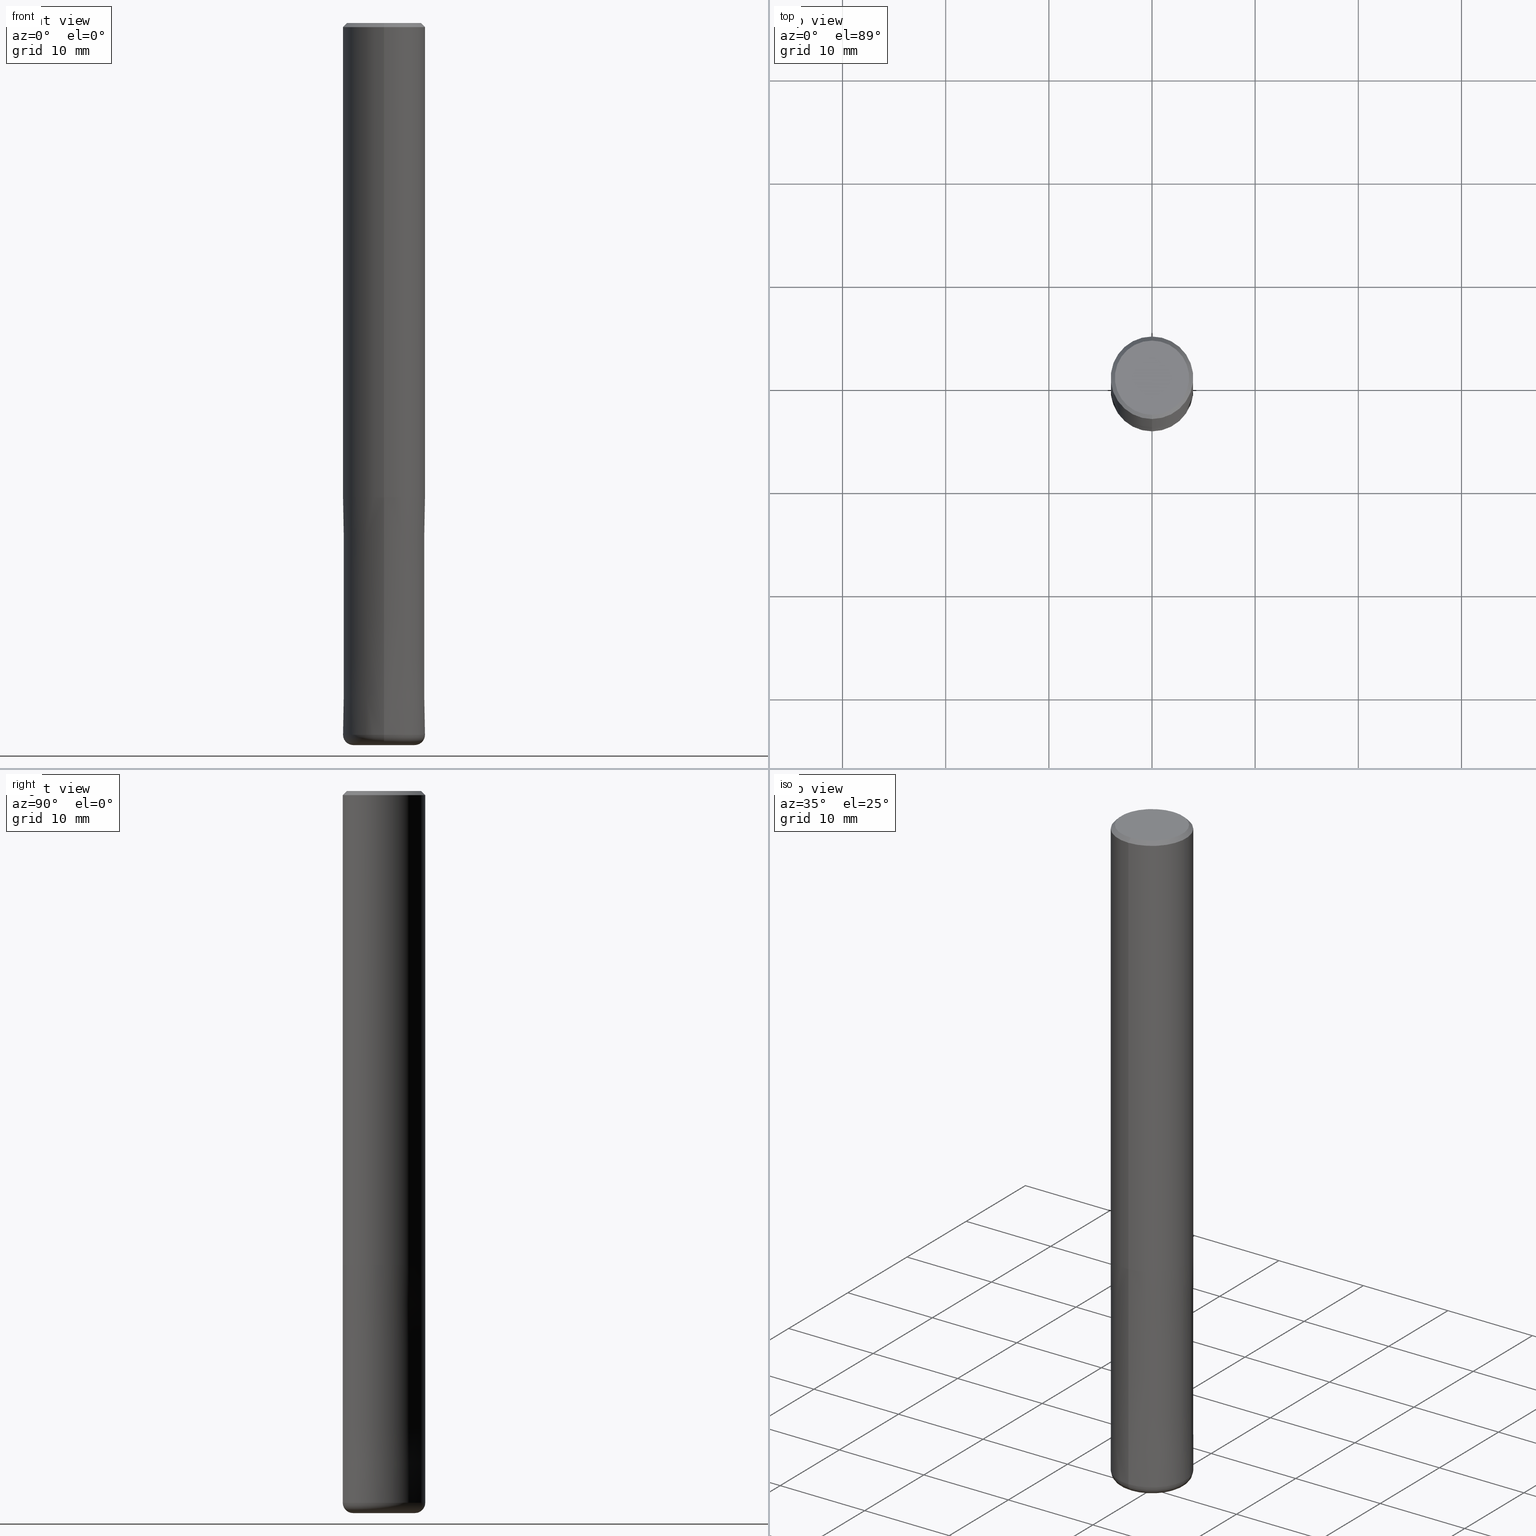
[diagram: canonical four-view strip — front | top / right | iso, engineering-drawing reading convention]
A machine part, canonical four-view strip (front | top / right | iso — engineering-drawing reading convention). The complete STEP part file that produces these views, byte-faithful:
ISO-10303-21;
HEADER;
FILE_DESCRIPTION(('no description'),'unknown implementation level');
FILE_NAME('CXRS5080-10-2400-Huellk.stp','  ',('CIMSOURCE GmbH'),('CADClick - KiM GmbH - www.kimweb.de'),'unknown preprocess','ACIS','unknown authorization');
FILE_SCHEMA(('automotive_design'));
ENDSEC;
DATA;
#1=MECHANICAL_DESIGN_GEOMETRIC_PRESENTATION_REPRESENTATION(' ',(#14,#15,#16,#17,#18,#19,#20,#21,#22,#23,#24,#25,#26,#27,#28,#29,#30,#31,#32,#33,#34,#35,#36,#37,#38,#39,#40,#41,#42,#43,#44,#45,#46,#47,#48,#49,#50,#51,#52,#53,#54,#55,#56,#57,#58,#59,#60,#61,#62,#63,#64,#65,#66,#67,#68,#69,#70,#71,#72,#73,#74,#75,#76,#77,#78,#79,#80,#81,#82,#83,#84),#10);
#2=PRODUCT_DEFINITION_CONTEXT('',#85,'design');
#3=APPLICATION_PROTOCOL_DEFINITION('INTERNATIONAL STANDARD','automotive_design',1994,#85);
#4=PRODUCT_CATEGORY_RELATIONSHIP('NONE','NONE',#86,#87);
#5=SHAPE_DEFINITION_REPRESENTATION(#88,#89);
#6=PRODUCT_DEFINITION_CONTEXT('',#90,'design');
#7=APPLICATION_PROTOCOL_DEFINITION('INTERNATIONAL STANDARD','automotive_design',1994,#90);
#8=PRODUCT_CATEGORY_RELATIONSHIP('NONE','NONE',#91,#92);
#9=SHAPE_DEFINITION_REPRESENTATION(#93,#94);
#10= (GEOMETRIC_REPRESENTATION_CONTEXT(3)GLOBAL_UNCERTAINTY_ASSIGNED_CONTEXT((#97))GLOBAL_UNIT_ASSIGNED_CONTEXT((#99,#100,#101))REPRESENTATION_CONTEXT('NONE','WORKSPACE'));
#14=STYLED_ITEM('',(#103),#104);
#15=STYLED_ITEM('',(#105),#106);
#16=STYLED_ITEM('',(#107),#108);
#17=STYLED_ITEM('',(#109),#110);
#18=STYLED_ITEM('',(#111),#112);
#19=STYLED_ITEM('',(#113),#114);
#20=STYLED_ITEM('',(#115),#116);
#21=STYLED_ITEM('',(#117),#118);
#22=STYLED_ITEM('',(#119),#120);
#23=STYLED_ITEM('',(#121),#122);
#24=STYLED_ITEM('',(#123),#124);
#25=STYLED_ITEM('',(#125),#126);
#26=STYLED_ITEM('',(#127),#128);
#27=STYLED_ITEM('',(#129),#130);
#28=STYLED_ITEM('',(#131),#132);
#29=STYLED_ITEM('',(#133),#134);
#30=STYLED_ITEM('',(#135),#136);
#31=STYLED_ITEM('',(#137),#138);
#32=STYLED_ITEM('',(#139),#140);
#33=STYLED_ITEM('',(#141),#142);
#34=STYLED_ITEM('',(#143),#144);
#35=STYLED_ITEM('',(#145),#146);
#36=STYLED_ITEM('',(#147),#148);
#37=STYLED_ITEM('',(#149),#150);
#38=STYLED_ITEM('',(#151),#152);
#39=STYLED_ITEM('',(#153),#154);
#40=STYLED_ITEM('',(#155),#156);
#41=STYLED_ITEM('',(#157),#158);
#42=STYLED_ITEM('',(#159),#160);
#43=STYLED_ITEM('',(#161),#162);
#44=STYLED_ITEM('',(#163),#164);
#45=STYLED_ITEM('',(#165),#166);
#46=STYLED_ITEM('',(#167),#168);
#47=STYLED_ITEM('',(#169),#170);
#48=STYLED_ITEM('',(#171),#172);
#49=STYLED_ITEM('',(#173),#174);
#50=STYLED_ITEM('',(#175),#176);
#51=STYLED_ITEM('',(#177),#178);
#52=STYLED_ITEM('',(#179),#180);
#53=STYLED_ITEM('',(#181),#182);
#54=STYLED_ITEM('',(#183),#184);
#55=STYLED_ITEM('',(#185),#186);
#56=STYLED_ITEM('',(#187),#188);
#57=STYLED_ITEM('',(#189),#190);
#58=STYLED_ITEM('',(#191),#192);
#59=STYLED_ITEM('',(#193),#194);
#60=STYLED_ITEM('',(#195),#196);
#61=STYLED_ITEM('',(#197),#198);
#62=STYLED_ITEM('',(#199),#200);
#63=STYLED_ITEM('',(#201),#202);
#64=STYLED_ITEM('',(#203),#204);
#65=STYLED_ITEM('',(#205),#206);
#66=STYLED_ITEM('',(#207),#208);
#67=STYLED_ITEM('',(#209),#210);
#68=STYLED_ITEM('',(#211),#212);
#69=STYLED_ITEM('',(#213),#214);
#70=STYLED_ITEM('',(#215),#216);
#71=STYLED_ITEM('',(#217),#218);
#72=STYLED_ITEM('',(#219),#220);
#73=STYLED_ITEM('',(#221),#222);
#74=STYLED_ITEM('',(#223),#224);
#75=STYLED_ITEM('',(#225),#226);
#76=STYLED_ITEM('',(#227),#228);
#77=STYLED_ITEM('',(#229),#230);
#78=STYLED_ITEM('',(#231),#232);
#79=STYLED_ITEM('',(#233),#234);
#80=STYLED_ITEM('',(#235),#236);
#81=STYLED_ITEM('',(#237),#238);
#82=STYLED_ITEM('',(#239),#240);
#83=STYLED_ITEM('',(#241),#242);
#84=STYLED_ITEM('',(#243),#244);
#85=APPLICATION_CONTEXT(' ');
#86=PRODUCT_CATEGORY('part','NONE');
#87=PRODUCT_RELATED_PRODUCT_CATEGORY('detail',' ',(#245));
#88=PRODUCT_DEFINITION_SHAPE('NONE','NONE',#246);
#89=ADVANCED_BREP_SHAPE_REPRESENTATION('1',(#212,#247),#10);
#90=APPLICATION_CONTEXT(' ');
#91=PRODUCT_CATEGORY('part','NONE');
#92=PRODUCT_RELATED_PRODUCT_CATEGORY('detail',' ',(#248));
#93=PRODUCT_DEFINITION_SHAPE('NONE','NONE',#249);
#94=ADVANCED_BREP_SHAPE_REPRESENTATION('2',(#242,#250),#10);
#97=UNCERTAINTY_MEASURE_WITH_UNIT(LENGTH_MEASURE(1.0E-006),#99,'','');
#99= (CONVERSION_BASED_UNIT('MILLIMETRE',#253)LENGTH_UNIT()NAMED_UNIT(#256));
#100= (NAMED_UNIT(#258)PLANE_ANGLE_UNIT()SI_UNIT($,.RADIAN.));
#101= (NAMED_UNIT(#258)SOLID_ANGLE_UNIT()SI_UNIT($,.STERADIAN.));
#103=PRESENTATION_STYLE_ASSIGNMENT((#264));
#104=EDGE_CURVE('',#182,#156,#265,.T.);
#105=PRESENTATION_STYLE_ASSIGNMENT((#266));
#106=VERTEX_POINT('',#267);
#107=PRESENTATION_STYLE_ASSIGNMENT((#268));
#108=VERTEX_POINT('',#269);
#109=PRESENTATION_STYLE_ASSIGNMENT((#270));
#110=VERTEX_POINT('',#271);
#111=PRESENTATION_STYLE_ASSIGNMENT((#272));
#112=EDGE_CURVE('',#216,#202,#273,.T.);
#113=PRESENTATION_STYLE_ASSIGNMENT((#274));
#114=VERTEX_POINT('',#275);
#115=PRESENTATION_STYLE_ASSIGNMENT((#276));
#116=EDGE_CURVE('',#108,#198,#277,.T.);
#117=PRESENTATION_STYLE_ASSIGNMENT((#278));
#118=EDGE_CURVE('',#156,#146,#279,.T.);
#119=PRESENTATION_STYLE_ASSIGNMENT((#280));
#120=ADVANCED_FACE('',(#281),#282,.T.);
#121=PRESENTATION_STYLE_ASSIGNMENT((#283));
#122=EDGE_CURVE('',#114,#234,#284,.T.);
#123=PRESENTATION_STYLE_ASSIGNMENT((#285));
#124=EDGE_CURVE('',#128,#110,#286,.T.);
#125=PRESENTATION_STYLE_ASSIGNMENT((#287));
#126=EDGE_CURVE('',#132,#178,#288,.T.);
#127=PRESENTATION_STYLE_ASSIGNMENT((#289));
#128=VERTEX_POINT('',#290);
#129=PRESENTATION_STYLE_ASSIGNMENT((#291));
#130=EDGE_CURVE('',#142,#210,#292,.T.);
#131=PRESENTATION_STYLE_ASSIGNMENT((#293));
#132=VERTEX_POINT('',#294);
#133=PRESENTATION_STYLE_ASSIGNMENT((#295));
#134=ADVANCED_FACE('',(#296),#297,.T.);
#135=PRESENTATION_STYLE_ASSIGNMENT((#298));
#136=ADVANCED_FACE('',(#299),#300,.F.);
#137=PRESENTATION_STYLE_ASSIGNMENT((#301));
#138=VERTEX_POINT('',#302);
#139=PRESENTATION_STYLE_ASSIGNMENT((#303));
#140=ADVANCED_FACE('',(#304),#305,.T.);
#141=PRESENTATION_STYLE_ASSIGNMENT((#306));
#142=VERTEX_POINT('',#307);
#143=PRESENTATION_STYLE_ASSIGNMENT((#308));
#144=ADVANCED_FACE('',(#309),#310,.T.);
#145=PRESENTATION_STYLE_ASSIGNMENT((#311));
#146=VERTEX_POINT('',#312);
#147=PRESENTATION_STYLE_ASSIGNMENT((#313));
#148=EDGE_CURVE('',#146,#114,#314,.T.);
#149=PRESENTATION_STYLE_ASSIGNMENT((#315));
#150=VERTEX_POINT('',#316);
#151=PRESENTATION_STYLE_ASSIGNMENT((#317));
#152=EDGE_CURVE('',#202,#178,#318,.T.);
#153=PRESENTATION_STYLE_ASSIGNMENT((#319));
#154=EDGE_CURVE('',#150,#108,#320,.T.);
#155=PRESENTATION_STYLE_ASSIGNMENT((#321));
#156=VERTEX_POINT('',#322);
#157=PRESENTATION_STYLE_ASSIGNMENT((#323));
#158=ADVANCED_FACE('',(#324),#325,.F.);
#159=PRESENTATION_STYLE_ASSIGNMENT((#326));
#160=ADVANCED_FACE('',(#327),#328,.T.);
#161=PRESENTATION_STYLE_ASSIGNMENT((#329));
#162=EDGE_CURVE('',#178,#132,#330,.T.);
#163=PRESENTATION_STYLE_ASSIGNMENT((#331));
#164=EDGE_CURVE('',#106,#172,#332,.T.);
#165=PRESENTATION_STYLE_ASSIGNMENT((#333));
#166=EDGE_CURVE('',#138,#146,#334,.T.);
#167=PRESENTATION_STYLE_ASSIGNMENT((#335));
#168=EDGE_CURVE('',#128,#178,#336,.T.);
#169=PRESENTATION_STYLE_ASSIGNMENT((#337));
#170=EDGE_CURVE('',#196,#198,#338,.T.);
#171=PRESENTATION_STYLE_ASSIGNMENT((#339));
#172=VERTEX_POINT('',#340);
#173=PRESENTATION_STYLE_ASSIGNMENT((#341));
#174=EDGE_CURVE('',#172,#210,#342,.T.);
#175=PRESENTATION_STYLE_ASSIGNMENT((#343));
#176=ADVANCED_FACE('',(#344,#345),#346,.T.);
#177=PRESENTATION_STYLE_ASSIGNMENT((#347));
#178=VERTEX_POINT('',#348);
#179=PRESENTATION_STYLE_ASSIGNMENT((#349));
#180=EDGE_CURVE('',#110,#128,#350,.T.);
#181=PRESENTATION_STYLE_ASSIGNMENT((#351));
#182=VERTEX_POINT('',#352);
#183=PRESENTATION_STYLE_ASSIGNMENT((#353));
#184=EDGE_CURVE('',#138,#182,#354,.T.);
#185=PRESENTATION_STYLE_ASSIGNMENT((#355));
#186=ADVANCED_FACE('',(#356),#357,.T.);
#187=PRESENTATION_STYLE_ASSIGNMENT((#358));
#188=ADVANCED_FACE('',(#359,#360),#361,.T.);
#189=PRESENTATION_STYLE_ASSIGNMENT((#362));
#190=EDGE_CURVE('',#108,#150,#363,.T.);
#191=PRESENTATION_STYLE_ASSIGNMENT((#364));
#192=EDGE_CURVE('',#156,#182,#365,.T.);
#193=PRESENTATION_STYLE_ASSIGNMENT((#366));
#194=EDGE_CURVE('',#146,#138,#367,.T.);
#195=PRESENTATION_STYLE_ASSIGNMENT((#368));
#196=VERTEX_POINT('',#369);
#197=PRESENTATION_STYLE_ASSIGNMENT((#370));
#198=VERTEX_POINT('',#371);
#199=PRESENTATION_STYLE_ASSIGNMENT((#372));
#200=ADVANCED_FACE('',(#373),#374,.T.);
#201=PRESENTATION_STYLE_ASSIGNMENT((#375));
#202=VERTEX_POINT('',#376);
#203=PRESENTATION_STYLE_ASSIGNMENT((#377));
#204=ADVANCED_FACE('',(#378),#379,.T.);
#205=PRESENTATION_STYLE_ASSIGNMENT((#380));
#206=EDGE_CURVE('',#202,#216,#381,.T.);
#207=PRESENTATION_STYLE_ASSIGNMENT((#382));
#208=EDGE_CURVE('',#172,#106,#383,.T.);
#209=PRESENTATION_STYLE_ASSIGNMENT((#384));
#210=VERTEX_POINT('',#385);
#211=PRESENTATION_STYLE_ASSIGNMENT((#386));
#212=MANIFOLD_SOLID_BREP('1',#387);
#213=PRESENTATION_STYLE_ASSIGNMENT((#388));
#214=EDGE_CURVE('',#234,#138,#389,.T.);
#215=PRESENTATION_STYLE_ASSIGNMENT((#390));
#216=VERTEX_POINT('',#391);
#217=PRESENTATION_STYLE_ASSIGNMENT((#392));
#218=EDGE_CURVE('',#198,#196,#393,.T.);
#219=PRESENTATION_STYLE_ASSIGNMENT((#394));
#220=EDGE_CURVE('',#132,#216,#395,.T.);
#221=PRESENTATION_STYLE_ASSIGNMENT((#396));
#222=EDGE_CURVE('',#132,#110,#397,.T.);
#223=PRESENTATION_STYLE_ASSIGNMENT((#398));
#224=ADVANCED_FACE('',(#399),#400,.T.);
#225=PRESENTATION_STYLE_ASSIGNMENT((#401));
#226=EDGE_CURVE('',#234,#114,#402,.T.);
#227=PRESENTATION_STYLE_ASSIGNMENT((#403));
#228=EDGE_CURVE('',#142,#106,#404,.T.);
#229=PRESENTATION_STYLE_ASSIGNMENT((#405));
#230=ADVANCED_FACE('',(#406),#407,.T.);
#231=PRESENTATION_STYLE_ASSIGNMENT((#408));
#232=EDGE_CURVE('',#196,#150,#409,.T.);
#233=PRESENTATION_STYLE_ASSIGNMENT((#410));
#234=VERTEX_POINT('',#411);
#235=PRESENTATION_STYLE_ASSIGNMENT((#412));
#236=ADVANCED_FACE('',(#413,#414),#415,.T.);
#237=PRESENTATION_STYLE_ASSIGNMENT((#416));
#238=ADVANCED_FACE('',(#417),#418,.T.);
#239=PRESENTATION_STYLE_ASSIGNMENT((#419));
#240=EDGE_CURVE('',#210,#142,#420,.T.);
#241=PRESENTATION_STYLE_ASSIGNMENT((#421));
#242=MANIFOLD_SOLID_BREP('2',#422);
#243=PRESENTATION_STYLE_ASSIGNMENT((#423));
#244=ADVANCED_FACE('',(#424),#425,.T.);
#245=PRODUCT('1','1','PART-1-DESC',(#426));
#246=PRODUCT_DEFINITION('NONE','NONE',#427,#2);
#247=AXIS2_PLACEMENT_3D('',#428,#429,#430);
#248=PRODUCT('2','2','PART-2-DESC',(#431));
#249=PRODUCT_DEFINITION('NONE','NONE',#432,#6);
#250=AXIS2_PLACEMENT_3D('',#433,#434,#435);
#253=LENGTH_MEASURE_WITH_UNIT(LENGTH_MEASURE(1.0),#436);
#256=DIMENSIONAL_EXPONENTS(1.0,0.0,0.0,0.0,0.0,0.0,0.0);
#258=DIMENSIONAL_EXPONENTS(0.0,0.0,0.0,0.0,0.0,0.0,0.0);
#264=CURVE_STYLE('',#437,POSITIVE_LENGTH_MEASURE(1.0E-006),#438);
#265=CIRCLE('',#439,4.0);
#266=POINT_STYLE(' ',#440,POSITIVE_LENGTH_MEASURE(1.0E-006),#441);
#267=CARTESIAN_POINT('',(2.20429143688028E-016,-1.8,-46.0));
#268=POINT_STYLE(' ',#442,POSITIVE_LENGTH_MEASURE(1.0E-006),#443);
#269=CARTESIAN_POINT('',(2.20429143688028E-016,-1.8,-69.9));
#270=POINT_STYLE(' ',#444,POSITIVE_LENGTH_MEASURE(1.0E-006),#445);
#271=CARTESIAN_POINT('',(4.89830295465413E-016,-3.9999,-46.0));
#272=CURVE_STYLE('',#446,POSITIVE_LENGTH_MEASURE(1.0E-006),#447);
#273=CIRCLE('',#448,3.0);
#274=POINT_STYLE(' ',#449,POSITIVE_LENGTH_MEASURE(1.0E-006),#450);
#275=CARTESIAN_POINT('',(4.40858287376056E-016,-3.6,0.0));
#276=CURVE_STYLE('',#451,POSITIVE_LENGTH_MEASURE(1.0E-006),#452);
#277=LINE('',#453,#454);
#278=CURVE_STYLE('',#455,POSITIVE_LENGTH_MEASURE(1.0E-006),#456);
#279=LINE('',#457,#458);
#280=SURFACE_STYLE_USAGE(.BOTH.,#459);
#281=FACE_OUTER_BOUND('',#460,.T.);
#282=CONICAL_SURFACE('',#461,3.8,0.78539816339745);
#283=CURVE_STYLE('',#462,POSITIVE_LENGTH_MEASURE(1.0E-006),#463);
#284=CIRCLE('',#464,3.6);
#285=CURVE_STYLE('',#465,POSITIVE_LENGTH_MEASURE(1.0E-006),#466);
#286=CIRCLE('',#467,3.9999);
#287=CURVE_STYLE('',#468,POSITIVE_LENGTH_MEASURE(1.0E-006),#469);
#288=CIRCLE('',#470,4.0);
#289=POINT_STYLE(' ',#471,POSITIVE_LENGTH_MEASURE(1.0E-006),#472);
#290=CARTESIAN_POINT('',(0.0,3.9999,-46.0));
#291=CURVE_STYLE('',#473,POSITIVE_LENGTH_MEASURE(1.0E-006),#474);
#292=CIRCLE('',#475,1.8);
#293=POINT_STYLE(' ',#476,POSITIVE_LENGTH_MEASURE(1.0E-006),#477);
#294=CARTESIAN_POINT('',(4.89842541528951E-016,-4.0,-69.0));
#295=SURFACE_STYLE_USAGE(.BOTH.,#478);
#296=FACE_OUTER_BOUND('',#479,.T.);
#297=CYLINDRICAL_SURFACE('',#480,1.8);
#298=SURFACE_STYLE_USAGE(.BOTH.,#481);
#299=FACE_OUTER_BOUND('',#482,.T.);
#300=CYLINDRICAL_SURFACE('',#483,1.8);
#301=POINT_STYLE(' ',#484,POSITIVE_LENGTH_MEASURE(1.0E-006),#485);
#302=CARTESIAN_POINT('',(0.0,4.0,-0.399999999999999));
#303=SURFACE_STYLE_USAGE(.BOTH.,#486);
#304=FACE_OUTER_BOUND('',#487,.T.);
#305=PLANE('',#488);
#306=POINT_STYLE(' ',#489,POSITIVE_LENGTH_MEASURE(1.0E-006),#490);
#307=CARTESIAN_POINT('',(2.20429143688028E-016,-1.8,-70.0));
#308=SURFACE_STYLE_USAGE(.BOTH.,#491);
#309=FACE_OUTER_BOUND('',#492,.T.);
#310=TOROIDAL_SURFACE('',#493,3.00000000000001,0.999999999999989);
#311=POINT_STYLE(' ',#494,POSITIVE_LENGTH_MEASURE(1.0E-006),#495);
#312=CARTESIAN_POINT('',(4.89842541528951E-016,-4.0,-0.399999999999999));
#313=CURVE_STYLE('',#496,POSITIVE_LENGTH_MEASURE(1.0E-006),#497);
#314=LINE('',#498,#499);
#315=POINT_STYLE(' ',#500,POSITIVE_LENGTH_MEASURE(1.0E-006),#501);
#316=CARTESIAN_POINT('',(0.0,1.8,-69.9));
#317=CURVE_STYLE('',#502,POSITIVE_LENGTH_MEASURE(1.0E-006),#503);
#318=CIRCLE('',#504,0.999999999999989);
#319=CURVE_STYLE('',#505,POSITIVE_LENGTH_MEASURE(1.0E-006),#506);
#320=CIRCLE('',#507,1.8);
#321=POINT_STYLE(' ',#508,POSITIVE_LENGTH_MEASURE(1.0E-006),#509);
#322=CARTESIAN_POINT('',(4.89842541528951E-016,-4.0,-46.0));
#323=SURFACE_STYLE_USAGE(.BOTH.,#510);
#324=FACE_OUTER_BOUND('',#511,.T.);
#325=CYLINDRICAL_SURFACE('',#512,1.8);
#326=SURFACE_STYLE_USAGE(.BOTH.,#513);
#327=FACE_OUTER_BOUND('',#514,.T.);
#328=PLANE('',#515);
#329=CURVE_STYLE('',#516,POSITIVE_LENGTH_MEASURE(1.0E-006),#517);
#330=CIRCLE('',#518,4.0);
#331=CURVE_STYLE('',#519,POSITIVE_LENGTH_MEASURE(1.0E-006),#520);
#332=CIRCLE('',#521,1.8);
#333=CURVE_STYLE('',#522,POSITIVE_LENGTH_MEASURE(1.0E-006),#523);
#334=CIRCLE('',#524,4.0);
#335=CURVE_STYLE('',#525,POSITIVE_LENGTH_MEASURE(1.0E-006),#526);
#336=LINE('',#527,#528);
#337=CURVE_STYLE('',#529,POSITIVE_LENGTH_MEASURE(1.0E-006),#530);
#338=CIRCLE('',#531,1.8);
#339=POINT_STYLE(' ',#532,POSITIVE_LENGTH_MEASURE(1.0E-006),#533);
#340=CARTESIAN_POINT('',(0.0,1.8,-46.0));
#341=CURVE_STYLE('',#534,POSITIVE_LENGTH_MEASURE(1.0E-006),#535);
#342=LINE('',#536,#537);
#343=SURFACE_STYLE_USAGE(.BOTH.,#538);
#344=FACE_BOUND('',#539,.T.);
#345=FACE_OUTER_BOUND('',#540,.T.);
#346=PLANE('',#541);
#347=POINT_STYLE(' ',#542,POSITIVE_LENGTH_MEASURE(1.0E-006),#543);
#348=CARTESIAN_POINT('',(0.0,4.0,-69.0));
#349=CURVE_STYLE('',#544,POSITIVE_LENGTH_MEASURE(1.0E-006),#545);
#350=CIRCLE('',#546,3.9999);
#351=POINT_STYLE(' ',#547,POSITIVE_LENGTH_MEASURE(1.0E-006),#548);
#352=CARTESIAN_POINT('',(0.0,4.0,-46.0));
#353=CURVE_STYLE('',#549,POSITIVE_LENGTH_MEASURE(1.0E-006),#550);
#354=LINE('',#551,#552);
#355=SURFACE_STYLE_USAGE(.BOTH.,#553);
#356=FACE_OUTER_BOUND('',#554,.T.);
#357=CONICAL_SURFACE('',#555,3.99995,4.3478260869383E-006);
#358=SURFACE_STYLE_USAGE(.BOTH.,#556);
#359=FACE_OUTER_BOUND('',#557,.T.);
#360=FACE_BOUND('',#558,.T.);
#361=PLANE('',#559);
#362=CURVE_STYLE('',#560,POSITIVE_LENGTH_MEASURE(1.0E-006),#561);
#363=CIRCLE('',#562,1.8);
#364=CURVE_STYLE('',#563,POSITIVE_LENGTH_MEASURE(1.0E-006),#564);
#365=CIRCLE('',#565,4.0);
#366=CURVE_STYLE('',#566,POSITIVE_LENGTH_MEASURE(1.0E-006),#567);
#367=CIRCLE('',#568,4.0);
#368=POINT_STYLE(' ',#569,POSITIVE_LENGTH_MEASURE(1.0E-006),#570);
#369=CARTESIAN_POINT('',(0.0,1.8,-46.0));
#370=POINT_STYLE(' ',#571,POSITIVE_LENGTH_MEASURE(1.0E-006),#572);
#371=CARTESIAN_POINT('',(2.20429143688028E-016,-1.8,-46.0));
#372=SURFACE_STYLE_USAGE(.BOTH.,#573);
#373=FACE_OUTER_BOUND('',#574,.T.);
#374=CYLINDRICAL_SURFACE('',#575,4.0);
#375=POINT_STYLE(' ',#576,POSITIVE_LENGTH_MEASURE(1.0E-006),#577);
#376=CARTESIAN_POINT('',(0.0,3.0,-70.0));
#377=SURFACE_STYLE_USAGE(.BOTH.,#578);
#378=FACE_OUTER_BOUND('',#579,.T.);
#379=TOROIDAL_SURFACE('',#580,3.00000000000001,0.999999999999989);
#380=CURVE_STYLE('',#581,POSITIVE_LENGTH_MEASURE(1.0E-006),#582);
#381=CIRCLE('',#583,3.0);
#382=CURVE_STYLE('',#584,POSITIVE_LENGTH_MEASURE(1.0E-006),#585);
#383=CIRCLE('',#586,1.8);
#384=POINT_STYLE(' ',#587,POSITIVE_LENGTH_MEASURE(1.0E-006),#588);
#385=CARTESIAN_POINT('',(0.0,1.8,-70.0));
#386=SURFACE_STYLE_USAGE(.BOTH.,#589);
#387=CLOSED_SHELL('',(#224,#230,#244,#188,#160,#120,#200,#134,#140));
#388=CURVE_STYLE('',#590,POSITIVE_LENGTH_MEASURE(1.0E-006),#591);
#389=LINE('',#592,#593);
#390=POINT_STYLE(' ',#594,POSITIVE_LENGTH_MEASURE(1.0E-006),#595);
#391=CARTESIAN_POINT('',(3.67381906146713E-016,-3.0,-70.0));
#392=CURVE_STYLE('',#596,POSITIVE_LENGTH_MEASURE(1.0E-006),#597);
#393=CIRCLE('',#598,1.8);
#394=CURVE_STYLE('',#599,POSITIVE_LENGTH_MEASURE(1.0E-006),#600);
#395=CIRCLE('',#601,0.999999999999989);
#396=CURVE_STYLE('',#602,POSITIVE_LENGTH_MEASURE(1.0E-006),#603);
#397=LINE('',#604,#605);
#398=SURFACE_STYLE_USAGE(.BOTH.,#606);
#399=FACE_OUTER_BOUND('',#607,.T.);
#400=CYLINDRICAL_SURFACE('',#608,1.8);
#401=CURVE_STYLE('',#609,POSITIVE_LENGTH_MEASURE(1.0E-006),#610);
#402=CIRCLE('',#611,3.6);
#403=CURVE_STYLE('',#612,POSITIVE_LENGTH_MEASURE(1.0E-006),#613);
#404=LINE('',#614,#615);
#405=SURFACE_STYLE_USAGE(.BOTH.,#616);
#406=FACE_OUTER_BOUND('',#617,.T.);
#407=CYLINDRICAL_SURFACE('',#618,4.0);
#408=CURVE_STYLE('',#619,POSITIVE_LENGTH_MEASURE(1.0E-006),#620);
#409=LINE('',#621,#622);
#410=POINT_STYLE(' ',#623,POSITIVE_LENGTH_MEASURE(1.0E-006),#624);
#411=CARTESIAN_POINT('',(0.0,3.6,0.0));
#412=SURFACE_STYLE_USAGE(.BOTH.,#625);
#413=FACE_OUTER_BOUND('',#626,.T.);
#414=FACE_BOUND('',#627,.T.);
#415=PLANE('',#628);
#416=SURFACE_STYLE_USAGE(.BOTH.,#629);
#417=FACE_OUTER_BOUND('',#630,.T.);
#418=CONICAL_SURFACE('',#631,3.99995,4.3478260869383E-006);
#419=CURVE_STYLE('',#632,POSITIVE_LENGTH_MEASURE(1.0E-006),#633);
#420=CIRCLE('',#634,1.8);
#421=SURFACE_STYLE_USAGE(.BOTH.,#635);
#422=CLOSED_SHELL('',(#136,#204,#186,#236,#238,#144,#176,#158));
#423=SURFACE_STYLE_USAGE(.BOTH.,#636);
#424=FACE_OUTER_BOUND('',#637,.T.);
#425=CONICAL_SURFACE('',#638,3.8,0.78539816339745);
#426=PRODUCT_CONTEXT('',#85,'mechanical');
#427=PRODUCT_DEFINITION_FORMATION_WITH_SPECIFIED_SOURCE(' ','NONE',#245,.NOT_KNOWN.);
#428=CARTESIAN_POINT('',(0.0,0.0,0.0));
#429=DIRECTION('',(0.0,0.0,1.0));
#430=DIRECTION('',(1.0,0.0,0.0));
#431=PRODUCT_CONTEXT('',#90,'mechanical');
#432=PRODUCT_DEFINITION_FORMATION_WITH_SPECIFIED_SOURCE(' ','NONE',#248,.NOT_KNOWN.);
#433=CARTESIAN_POINT('',(0.0,0.0,0.0));
#434=DIRECTION('',(0.0,0.0,1.0));
#435=DIRECTION('',(1.0,0.0,0.0));
#436= (NAMED_UNIT(#256)LENGTH_UNIT()SI_UNIT(.MILLI.,.METRE.));
#437=DRAUGHTING_PRE_DEFINED_CURVE_FONT('continuous');
#438=COLOUR_RGB('',0.498039215803146,0.498039215803146,0.498039215803146);
#439=AXIS2_PLACEMENT_3D('',#640,#641,#642);
#440=PRE_DEFINED_MARKER('');
#441=COLOUR_RGB('',0.800000011920929,0.800000011920929,0.800000011920929);
#442=PRE_DEFINED_MARKER('');
#443=COLOUR_RGB('',0.498039215803146,0.498039215803146,0.498039215803146);
#444=PRE_DEFINED_MARKER('');
#445=COLOUR_RGB('',0.800000011920929,0.800000011920929,0.800000011920929);
#446=DRAUGHTING_PRE_DEFINED_CURVE_FONT('continuous');
#447=COLOUR_RGB('',0.800000011920929,0.800000011920929,0.800000011920929);
#448=AXIS2_PLACEMENT_3D('',#643,#644,#645);
#449=PRE_DEFINED_MARKER('');
#450=COLOUR_RGB('',0.498039215803146,0.498039215803146,0.498039215803146);
#451=DRAUGHTING_PRE_DEFINED_CURVE_FONT('continuous');
#452=COLOUR_RGB('',0.498039215803146,0.498039215803146,0.498039215803146);
#453=CARTESIAN_POINT('',(2.20429143688028E-016,-1.8,-57.95));
#454=VECTOR('',#646,1.0);
#455=DRAUGHTING_PRE_DEFINED_CURVE_FONT('continuous');
#456=COLOUR_RGB('',0.498039215803146,0.498039215803146,0.498039215803146);
#457=CARTESIAN_POINT('',(4.89842541528951E-016,-4.0,-23.2));
#458=VECTOR('',#647,1.0);
#459=SURFACE_SIDE_STYLE('',(#648));
#460=EDGE_LOOP('',(#649,#650,#651,#652));
#461=AXIS2_PLACEMENT_3D('',#653,#654,#655);
#462=DRAUGHTING_PRE_DEFINED_CURVE_FONT('continuous');
#463=COLOUR_RGB('',0.498039215803146,0.498039215803146,0.498039215803146);
#464=AXIS2_PLACEMENT_3D('',#656,#657,#658);
#465=DRAUGHTING_PRE_DEFINED_CURVE_FONT('continuous');
#466=COLOUR_RGB('',0.800000011920929,0.800000011920929,0.800000011920929);
#467=AXIS2_PLACEMENT_3D('',#659,#660,#661);
#468=DRAUGHTING_PRE_DEFINED_CURVE_FONT('continuous');
#469=COLOUR_RGB('',0.800000011920929,0.800000011920929,0.800000011920929);
#470=AXIS2_PLACEMENT_3D('',#662,#663,#664);
#471=PRE_DEFINED_MARKER('');
#472=COLOUR_RGB('',0.800000011920929,0.800000011920929,0.800000011920929);
#473=DRAUGHTING_PRE_DEFINED_CURVE_FONT('continuous');
#474=COLOUR_RGB('',0.800000011920929,0.800000011920929,0.800000011920929);
#475=AXIS2_PLACEMENT_3D('',#665,#666,#667);
#476=PRE_DEFINED_MARKER('');
#477=COLOUR_RGB('',0.800000011920929,0.800000011920929,0.800000011920929);
#478=SURFACE_SIDE_STYLE('',(#668));
#479=EDGE_LOOP('',(#669,#670,#671,#672));
#480=AXIS2_PLACEMENT_3D('',#673,#674,#675);
#481=SURFACE_SIDE_STYLE('',(#676));
#482=EDGE_LOOP('',(#677,#678,#679,#680));
#483=AXIS2_PLACEMENT_3D('',#681,#682,#683);
#484=PRE_DEFINED_MARKER('');
#485=COLOUR_RGB('',0.498039215803146,0.498039215803146,0.498039215803146);
#486=SURFACE_SIDE_STYLE('',(#684));
#487=EDGE_LOOP('',(#685,#686));
#488=AXIS2_PLACEMENT_3D('',#687,#688,#689);
#489=PRE_DEFINED_MARKER('');
#490=COLOUR_RGB('',0.800000011920929,0.800000011920929,0.800000011920929);
#491=SURFACE_SIDE_STYLE('',(#690));
#492=EDGE_LOOP('',(#691,#692,#693,#694));
#493=AXIS2_PLACEMENT_3D('',#695,#696,#697);
#494=PRE_DEFINED_MARKER('');
#495=COLOUR_RGB('',0.498039215803146,0.498039215803146,0.498039215803146);
#496=DRAUGHTING_PRE_DEFINED_CURVE_FONT('continuous');
#497=COLOUR_RGB('',0.498039215803146,0.498039215803146,0.498039215803146);
#498=CARTESIAN_POINT('',(4.65350414452503E-016,-3.8,-0.200000000000003));
#499=VECTOR('',#698,1.0);
#500=PRE_DEFINED_MARKER('');
#501=COLOUR_RGB('',0.498039215803146,0.498039215803146,0.498039215803146);
#502=DRAUGHTING_PRE_DEFINED_CURVE_FONT('continuous');
#503=COLOUR_RGB('',0.800000011920929,0.800000011920929,0.800000011920929);
#504=AXIS2_PLACEMENT_3D('',#699,#700,#701);
#505=DRAUGHTING_PRE_DEFINED_CURVE_FONT('continuous');
#506=COLOUR_RGB('',0.498039215803146,0.498039215803146,0.498039215803146);
#507=AXIS2_PLACEMENT_3D('',#702,#703,#704);
#508=PRE_DEFINED_MARKER('');
#509=COLOUR_RGB('',0.498039215803146,0.498039215803146,0.498039215803146);
#510=SURFACE_SIDE_STYLE('',(#705));
#511=EDGE_LOOP('',(#706,#707,#708,#709));
#512=AXIS2_PLACEMENT_3D('',#710,#711,#712);
#513=SURFACE_SIDE_STYLE('',(#713));
#514=EDGE_LOOP('',(#714,#715));
#515=AXIS2_PLACEMENT_3D('',#716,#717,#718);
#516=DRAUGHTING_PRE_DEFINED_CURVE_FONT('continuous');
#517=COLOUR_RGB('',0.800000011920929,0.800000011920929,0.800000011920929);
#518=AXIS2_PLACEMENT_3D('',#719,#720,#721);
#519=DRAUGHTING_PRE_DEFINED_CURVE_FONT('continuous');
#520=COLOUR_RGB('',0.800000011920929,0.800000011920929,0.800000011920929);
#521=AXIS2_PLACEMENT_3D('',#722,#723,#724);
#522=DRAUGHTING_PRE_DEFINED_CURVE_FONT('continuous');
#523=COLOUR_RGB('',0.498039215803146,0.498039215803146,0.498039215803146);
#524=AXIS2_PLACEMENT_3D('',#725,#726,#727);
#525=DRAUGHTING_PRE_DEFINED_CURVE_FONT('continuous');
#526=COLOUR_RGB('',0.800000011920929,0.800000011920929,0.800000011920929);
#527=CARTESIAN_POINT('',(-4.89836418497181E-016,3.99995,-57.5));
#528=VECTOR('',#728,1.0);
#529=DRAUGHTING_PRE_DEFINED_CURVE_FONT('continuous');
#530=COLOUR_RGB('',0.498039215803146,0.498039215803146,0.498039215803146);
#531=AXIS2_PLACEMENT_3D('',#729,#730,#731);
#532=PRE_DEFINED_MARKER('');
#533=COLOUR_RGB('',0.800000011920929,0.800000011920929,0.800000011920929);
#534=DRAUGHTING_PRE_DEFINED_CURVE_FONT('continuous');
#535=COLOUR_RGB('',0.800000011920929,0.800000011920929,0.800000011920929);
#536=CARTESIAN_POINT('',(-2.20429143688028E-016,1.8,-58.0));
#537=VECTOR('',#732,1.0);
#538=SURFACE_SIDE_STYLE('',(#733));
#539=EDGE_LOOP('',(#734,#735));
#540=EDGE_LOOP('',(#736,#737));
#541=AXIS2_PLACEMENT_3D('',#738,#739,#740);
#542=PRE_DEFINED_MARKER('');
#543=COLOUR_RGB('',0.800000011920929,0.800000011920929,0.800000011920929);
#544=DRAUGHTING_PRE_DEFINED_CURVE_FONT('continuous');
#545=COLOUR_RGB('',0.800000011920929,0.800000011920929,0.800000011920929);
#546=AXIS2_PLACEMENT_3D('',#741,#742,#743);
#547=PRE_DEFINED_MARKER('');
#548=COLOUR_RGB('',0.498039215803146,0.498039215803146,0.498039215803146);
#549=DRAUGHTING_PRE_DEFINED_CURVE_FONT('continuous');
#550=COLOUR_RGB('',0.498039215803146,0.498039215803146,0.498039215803146);
#551=CARTESIAN_POINT('',(-4.89842541528951E-016,4.0,-23.2));
#552=VECTOR('',#744,1.0);
#553=SURFACE_SIDE_STYLE('',(#745));
#554=EDGE_LOOP('',(#746,#747,#748,#749));
#555=AXIS2_PLACEMENT_3D('',#750,#751,#752);
#556=SURFACE_SIDE_STYLE('',(#753));
#557=EDGE_LOOP('',(#754,#755));
#558=EDGE_LOOP('',(#756,#757));
#559=AXIS2_PLACEMENT_3D('',#758,#759,#760);
#560=DRAUGHTING_PRE_DEFINED_CURVE_FONT('continuous');
#561=COLOUR_RGB('',0.498039215803146,0.498039215803146,0.498039215803146);
#562=AXIS2_PLACEMENT_3D('',#761,#762,#763);
#563=DRAUGHTING_PRE_DEFINED_CURVE_FONT('continuous');
#564=COLOUR_RGB('',0.498039215803146,0.498039215803146,0.498039215803146);
#565=AXIS2_PLACEMENT_3D('',#764,#765,#766);
#566=DRAUGHTING_PRE_DEFINED_CURVE_FONT('continuous');
#567=COLOUR_RGB('',0.498039215803146,0.498039215803146,0.498039215803146);
#568=AXIS2_PLACEMENT_3D('',#767,#768,#769);
#569=PRE_DEFINED_MARKER('');
#570=COLOUR_RGB('',0.498039215803146,0.498039215803146,0.498039215803146);
#571=PRE_DEFINED_MARKER('');
#572=COLOUR_RGB('',0.498039215803146,0.498039215803146,0.498039215803146);
#573=SURFACE_SIDE_STYLE('',(#770));
#574=EDGE_LOOP('',(#771,#772,#773,#774));
#575=AXIS2_PLACEMENT_3D('',#775,#776,#777);
#576=PRE_DEFINED_MARKER('');
#577=COLOUR_RGB('',0.800000011920929,0.800000011920929,0.800000011920929);
#578=SURFACE_SIDE_STYLE('',(#778));
#579=EDGE_LOOP('',(#779,#780,#781,#782));
#580=AXIS2_PLACEMENT_3D('',#783,#784,#785);
#581=DRAUGHTING_PRE_DEFINED_CURVE_FONT('continuous');
#582=COLOUR_RGB('',0.800000011920929,0.800000011920929,0.800000011920929);
#583=AXIS2_PLACEMENT_3D('',#786,#787,#788);
#584=DRAUGHTING_PRE_DEFINED_CURVE_FONT('continuous');
#585=COLOUR_RGB('',0.800000011920929,0.800000011920929,0.800000011920929);
#586=AXIS2_PLACEMENT_3D('',#789,#790,#791);
#587=PRE_DEFINED_MARKER('');
#588=COLOUR_RGB('',0.800000011920929,0.800000011920929,0.800000011920929);
#589=SURFACE_SIDE_STYLE('',(#792));
#590=DRAUGHTING_PRE_DEFINED_CURVE_FONT('continuous');
#591=COLOUR_RGB('',0.498039215803146,0.498039215803146,0.498039215803146);
#592=CARTESIAN_POINT('',(-4.65350414452503E-016,3.8,-0.200000000000003));
#593=VECTOR('',#793,1.0);
#594=PRE_DEFINED_MARKER('');
#595=COLOUR_RGB('',0.800000011920929,0.800000011920929,0.800000011920929);
#596=DRAUGHTING_PRE_DEFINED_CURVE_FONT('continuous');
#597=COLOUR_RGB('',0.498039215803146,0.498039215803146,0.498039215803146);
#598=AXIS2_PLACEMENT_3D('',#794,#795,#796);
#599=DRAUGHTING_PRE_DEFINED_CURVE_FONT('continuous');
#600=COLOUR_RGB('',0.800000011920929,0.800000011920929,0.800000011920929);
#601=AXIS2_PLACEMENT_3D('',#797,#798,#799);
#602=DRAUGHTING_PRE_DEFINED_CURVE_FONT('continuous');
#603=COLOUR_RGB('',0.800000011920929,0.800000011920929,0.800000011920929);
#604=CARTESIAN_POINT('',(4.89836418497182E-016,-3.99995,-57.5));
#605=VECTOR('',#800,1.0);
#606=SURFACE_SIDE_STYLE('',(#801));
#607=EDGE_LOOP('',(#802,#803,#804,#805));
#608=AXIS2_PLACEMENT_3D('',#806,#807,#808);
#609=DRAUGHTING_PRE_DEFINED_CURVE_FONT('continuous');
#610=COLOUR_RGB('',0.498039215803146,0.498039215803146,0.498039215803146);
#611=AXIS2_PLACEMENT_3D('',#809,#810,#811);
#612=DRAUGHTING_PRE_DEFINED_CURVE_FONT('continuous');
#613=COLOUR_RGB('',0.800000011920929,0.800000011920929,0.800000011920929);
#614=CARTESIAN_POINT('',(2.20429143688028E-016,-1.8,-58.0));
#615=VECTOR('',#812,1.0);
#616=SURFACE_SIDE_STYLE('',(#813));
#617=EDGE_LOOP('',(#814,#815,#816,#817));
#618=AXIS2_PLACEMENT_3D('',#818,#819,#820);
#619=DRAUGHTING_PRE_DEFINED_CURVE_FONT('continuous');
#620=COLOUR_RGB('',0.498039215803146,0.498039215803146,0.498039215803146);
#621=CARTESIAN_POINT('',(-2.20429143688028E-016,1.8,-57.95));
#622=VECTOR('',#821,1.0);
#623=PRE_DEFINED_MARKER('');
#624=COLOUR_RGB('',0.498039215803146,0.498039215803146,0.498039215803146);
#625=SURFACE_SIDE_STYLE('',(#822));
#626=EDGE_LOOP('',(#823,#824));
#627=EDGE_LOOP('',(#825,#826));
#628=AXIS2_PLACEMENT_3D('',#827,#828,#829);
#629=SURFACE_SIDE_STYLE('',(#830));
#630=EDGE_LOOP('',(#831,#832,#833,#834));
#631=AXIS2_PLACEMENT_3D('',#835,#836,#837);
#632=DRAUGHTING_PRE_DEFINED_CURVE_FONT('continuous');
#633=COLOUR_RGB('',0.800000011920929,0.800000011920929,0.800000011920929);
#634=AXIS2_PLACEMENT_3D('',#838,#839,#840);
#635=SURFACE_SIDE_STYLE('',(#841));
#636=SURFACE_SIDE_STYLE('',(#842));
#637=EDGE_LOOP('',(#843,#844,#845,#846));
#638=AXIS2_PLACEMENT_3D('',#847,#848,#849);
#640=CARTESIAN_POINT('',(0.0,0.0,-46.0));
#641=DIRECTION('',(0.0,0.0,-1.0));
#642=DIRECTION('',(0.0,1.0,0.0));
#643=CARTESIAN_POINT('',(0.0,0.0,-70.0));
#644=DIRECTION('',(0.0,0.0,-1.0));
#645=DIRECTION('',(0.0,1.0,0.0));
#646=DIRECTION('',(-0.0,-0.0,1.0));
#647=DIRECTION('',(-0.0,-0.0,1.0));
#648=SURFACE_STYLE_FILL_AREA(#850);
#649=ORIENTED_EDGE('',*,*,#214,.T.);
#650=ORIENTED_EDGE('',*,*,#194,.F.);
#651=ORIENTED_EDGE('',*,*,#148,.T.);
#652=ORIENTED_EDGE('',*,*,#122,.T.);
#653=CARTESIAN_POINT('',(0.0,0.0,-0.200000000000003));
#654=DIRECTION('',(0.0,-0.0,-1.0));
#655=DIRECTION('',(0.0,1.0,0.0));
#656=CARTESIAN_POINT('',(0.0,0.0,0.0));
#657=DIRECTION('',(0.0,0.0,-1.0));
#658=DIRECTION('',(0.0,1.0,0.0));
#659=CARTESIAN_POINT('',(0.0,0.0,-46.0));
#660=DIRECTION('',(0.0,0.0,-1.0));
#661=DIRECTION('',(0.0,1.0,0.0));
#662=CARTESIAN_POINT('',(0.0,0.0,-69.0));
#663=DIRECTION('',(0.0,0.0,-1.0));
#664=DIRECTION('',(0.0,1.0,0.0));
#665=CARTESIAN_POINT('',(0.0,0.0,-70.0));
#666=DIRECTION('',(0.0,0.0,-1.0));
#667=DIRECTION('',(0.0,1.0,0.0));
#668=SURFACE_STYLE_FILL_AREA(#851);
#669=ORIENTED_EDGE('',*,*,#232,.T.);
#670=ORIENTED_EDGE('',*,*,#190,.F.);
#671=ORIENTED_EDGE('',*,*,#116,.T.);
#672=ORIENTED_EDGE('',*,*,#218,.T.);
#673=CARTESIAN_POINT('',(0.0,0.0,-57.95));
#674=DIRECTION('',(-0.0,-0.0,1.0));
#675=DIRECTION('',(0.0,1.0,0.0));
#676=SURFACE_STYLE_FILL_AREA(#852);
#677=ORIENTED_EDGE('',*,*,#174,.F.);
#678=ORIENTED_EDGE('',*,*,#164,.F.);
#679=ORIENTED_EDGE('',*,*,#228,.F.);
#680=ORIENTED_EDGE('',*,*,#130,.T.);
#681=CARTESIAN_POINT('',(0.0,0.0,-58.0));
#682=DIRECTION('',(-0.0,-0.0,1.0));
#683=DIRECTION('',(0.0,1.0,0.0));
#684=SURFACE_STYLE_FILL_AREA(#853);
#685=ORIENTED_EDGE('',*,*,#154,.T.);
#686=ORIENTED_EDGE('',*,*,#190,.T.);
#687=CARTESIAN_POINT('',(0.0,0.9,-69.9));
#688=DIRECTION('',(0.0,0.0,-1.0));
#689=DIRECTION('',(0.0,1.0,0.0));
#690=SURFACE_STYLE_FILL_AREA(#854);
#691=ORIENTED_EDGE('',*,*,#220,.T.);
#692=ORIENTED_EDGE('',*,*,#206,.F.);
#693=ORIENTED_EDGE('',*,*,#152,.T.);
#694=ORIENTED_EDGE('',*,*,#162,.T.);
#695=CARTESIAN_POINT('',(0.0,0.0,-69.0));
#696=DIRECTION('',(0.0,0.0,-1.0));
#697=DIRECTION('',(0.0,-1.0,0.0));
#698=DIRECTION('',(-8.65927457071937E-017,0.707106781186549,0.707106781186546));
#699=CARTESIAN_POINT('',(-3.67381906146714E-016,3.00000000000001,-69.0));
#700=DIRECTION('',(1.0,1.22460635382238E-016,0.0));
#701=DIRECTION('',(-1.22460635382238E-016,1.0,0.0));
#702=CARTESIAN_POINT('',(0.0,0.0,-69.9));
#703=DIRECTION('',(0.0,0.0,-1.0));
#704=DIRECTION('',(0.0,1.0,0.0));
#705=SURFACE_STYLE_FILL_AREA(#855);
#706=ORIENTED_EDGE('',*,*,#174,.T.);
#707=ORIENTED_EDGE('',*,*,#240,.T.);
#708=ORIENTED_EDGE('',*,*,#228,.T.);
#709=ORIENTED_EDGE('',*,*,#208,.F.);
#710=CARTESIAN_POINT('',(0.0,0.0,-58.0));
#711=DIRECTION('',(-0.0,-0.0,1.0));
#712=DIRECTION('',(0.0,1.0,0.0));
#713=SURFACE_STYLE_FILL_AREA(#856);
#714=ORIENTED_EDGE('',*,*,#226,.F.);
#715=ORIENTED_EDGE('',*,*,#122,.F.);
#716=CARTESIAN_POINT('',(0.0,1.8,0.0));
#717=DIRECTION('',(-0.0,0.0,1.0));
#718=DIRECTION('',(0.0,-1.0,0.0));
#719=CARTESIAN_POINT('',(0.0,0.0,-69.0));
#720=DIRECTION('',(0.0,0.0,-1.0));
#721=DIRECTION('',(0.0,1.0,0.0));
#722=CARTESIAN_POINT('',(0.0,0.0,-46.0));
#723=DIRECTION('',(0.0,0.0,-1.0));
#724=DIRECTION('',(0.0,1.0,0.0));
#725=CARTESIAN_POINT('',(0.0,0.0,-0.399999999999999));
#726=DIRECTION('',(0.0,0.0,-1.0));
#727=DIRECTION('',(0.0,1.0,0.0));
#728=DIRECTION('',(-5.32437545136255E-022,4.3478260869246E-006,-0.999999999990548));
#729=CARTESIAN_POINT('',(0.0,0.0,-46.0));
#730=DIRECTION('',(0.0,0.0,-1.0));
#731=DIRECTION('',(0.0,1.0,0.0));
#732=DIRECTION('',(0.0,-0.0,-1.0));
#733=SURFACE_STYLE_FILL_AREA(#857);
#734=ORIENTED_EDGE('',*,*,#240,.F.);
#735=ORIENTED_EDGE('',*,*,#130,.F.);
#736=ORIENTED_EDGE('',*,*,#206,.T.);
#737=ORIENTED_EDGE('',*,*,#112,.T.);
#738=CARTESIAN_POINT('',(0.0,2.4,-70.0));
#739=DIRECTION('',(0.0,0.0,-1.0));
#740=DIRECTION('',(0.0,1.0,0.0));
#741=CARTESIAN_POINT('',(0.0,0.0,-46.0));
#742=DIRECTION('',(0.0,0.0,-1.0));
#743=DIRECTION('',(0.0,1.0,0.0));
#744=DIRECTION('',(0.0,0.0,-1.0));
#745=SURFACE_STYLE_FILL_AREA(#858);
#746=ORIENTED_EDGE('',*,*,#168,.F.);
#747=ORIENTED_EDGE('',*,*,#124,.T.);
#748=ORIENTED_EDGE('',*,*,#222,.F.);
#749=ORIENTED_EDGE('',*,*,#162,.F.);
#750=CARTESIAN_POINT('',(0.0,0.0,-57.5));
#751=DIRECTION('',(0.0,-0.0,-1.0));
#752=DIRECTION('',(0.0,1.0,0.0));
#753=SURFACE_STYLE_FILL_AREA(#859);
#754=ORIENTED_EDGE('',*,*,#104,.T.);
#755=ORIENTED_EDGE('',*,*,#192,.T.);
#756=ORIENTED_EDGE('',*,*,#170,.F.);
#757=ORIENTED_EDGE('',*,*,#218,.F.);
#758=CARTESIAN_POINT('',(0.0,2.0,-46.0));
#759=DIRECTION('',(0.0,0.0,-1.0));
#760=DIRECTION('',(0.0,1.0,0.0));
#761=CARTESIAN_POINT('',(0.0,0.0,-69.9));
#762=DIRECTION('',(0.0,0.0,-1.0));
#763=DIRECTION('',(0.0,1.0,0.0));
#764=CARTESIAN_POINT('',(0.0,0.0,-46.0));
#765=DIRECTION('',(0.0,0.0,-1.0));
#766=DIRECTION('',(0.0,1.0,0.0));
#767=CARTESIAN_POINT('',(0.0,0.0,-0.399999999999999));
#768=DIRECTION('',(0.0,0.0,-1.0));
#769=DIRECTION('',(0.0,1.0,0.0));
#770=SURFACE_STYLE_FILL_AREA(#860);
#771=ORIENTED_EDGE('',*,*,#184,.T.);
#772=ORIENTED_EDGE('',*,*,#192,.F.);
#773=ORIENTED_EDGE('',*,*,#118,.T.);
#774=ORIENTED_EDGE('',*,*,#194,.T.);
#775=CARTESIAN_POINT('',(0.0,0.0,-23.2));
#776=DIRECTION('',(-0.0,-0.0,1.0));
#777=DIRECTION('',(0.0,1.0,0.0));
#778=SURFACE_STYLE_FILL_AREA(#861);
#779=ORIENTED_EDGE('',*,*,#220,.F.);
#780=ORIENTED_EDGE('',*,*,#126,.T.);
#781=ORIENTED_EDGE('',*,*,#152,.F.);
#782=ORIENTED_EDGE('',*,*,#112,.F.);
#783=CARTESIAN_POINT('',(0.0,0.0,-69.0));
#784=DIRECTION('',(0.0,0.0,-1.0));
#785=DIRECTION('',(0.0,-1.0,0.0));
#786=CARTESIAN_POINT('',(0.0,0.0,-70.0));
#787=DIRECTION('',(0.0,0.0,-1.0));
#788=DIRECTION('',(0.0,1.0,0.0));
#789=CARTESIAN_POINT('',(0.0,0.0,-46.0));
#790=DIRECTION('',(0.0,0.0,-1.0));
#791=DIRECTION('',(0.0,1.0,0.0));
#792=SURFACE_STYLE_FILL_AREA(#862);
#793=DIRECTION('',(-8.65927457071937E-017,0.707106781186549,-0.707106781186546));
#794=CARTESIAN_POINT('',(0.0,0.0,-46.0));
#795=DIRECTION('',(0.0,0.0,-1.0));
#796=DIRECTION('',(0.0,1.0,0.0));
#797=CARTESIAN_POINT('',(3.67381906146714E-016,-3.00000000000001,-69.0));
#798=DIRECTION('',(1.0,1.22460635382238E-016,0.0));
#799=DIRECTION('',(1.22460635382238E-016,-1.0,-0.0));
#800=DIRECTION('',(-5.32437545136255E-022,4.3478260869246E-006,0.999999999990548));
#801=SURFACE_STYLE_FILL_AREA(#863);
#802=ORIENTED_EDGE('',*,*,#232,.F.);
#803=ORIENTED_EDGE('',*,*,#170,.T.);
#804=ORIENTED_EDGE('',*,*,#116,.F.);
#805=ORIENTED_EDGE('',*,*,#154,.F.);
#806=CARTESIAN_POINT('',(0.0,0.0,-57.95));
#807=DIRECTION('',(-0.0,-0.0,1.0));
#808=DIRECTION('',(0.0,1.0,0.0));
#809=CARTESIAN_POINT('',(0.0,0.0,0.0));
#810=DIRECTION('',(0.0,0.0,-1.0));
#811=DIRECTION('',(0.0,1.0,0.0));
#812=DIRECTION('',(0.0,-0.0,1.0));
#813=SURFACE_STYLE_FILL_AREA(#864);
#814=ORIENTED_EDGE('',*,*,#184,.F.);
#815=ORIENTED_EDGE('',*,*,#166,.T.);
#816=ORIENTED_EDGE('',*,*,#118,.F.);
#817=ORIENTED_EDGE('',*,*,#104,.F.);
#818=CARTESIAN_POINT('',(0.0,0.0,-23.2));
#819=DIRECTION('',(-0.0,-0.0,1.0));
#820=DIRECTION('',(0.0,1.0,0.0));
#821=DIRECTION('',(0.0,0.0,-1.0));
#822=SURFACE_STYLE_FILL_AREA(#865);
#823=ORIENTED_EDGE('',*,*,#124,.F.);
#824=ORIENTED_EDGE('',*,*,#180,.F.);
#825=ORIENTED_EDGE('',*,*,#208,.T.);
#826=ORIENTED_EDGE('',*,*,#164,.T.);
#827=CARTESIAN_POINT('',(0.0,2.89995,-46.0));
#828=DIRECTION('',(-0.0,0.0,1.0));
#829=DIRECTION('',(0.0,-1.0,0.0));
#830=SURFACE_STYLE_FILL_AREA(#866);
#831=ORIENTED_EDGE('',*,*,#168,.T.);
#832=ORIENTED_EDGE('',*,*,#126,.F.);
#833=ORIENTED_EDGE('',*,*,#222,.T.);
#834=ORIENTED_EDGE('',*,*,#180,.T.);
#835=CARTESIAN_POINT('',(0.0,0.0,-57.5));
#836=DIRECTION('',(0.0,-0.0,-1.0));
#837=DIRECTION('',(0.0,1.0,0.0));
#838=CARTESIAN_POINT('',(0.0,0.0,-70.0));
#839=DIRECTION('',(0.0,0.0,-1.0));
#840=DIRECTION('',(0.0,1.0,0.0));
#841=SURFACE_STYLE_FILL_AREA(#867);
#842=SURFACE_STYLE_FILL_AREA(#868);
#843=ORIENTED_EDGE('',*,*,#214,.F.);
#844=ORIENTED_EDGE('',*,*,#226,.T.);
#845=ORIENTED_EDGE('',*,*,#148,.F.);
#846=ORIENTED_EDGE('',*,*,#166,.F.);
#847=CARTESIAN_POINT('',(0.0,0.0,-0.200000000000003));
#848=DIRECTION('',(0.0,-0.0,-1.0));
#849=DIRECTION('',(0.0,1.0,0.0));
#850=FILL_AREA_STYLE('',(#869));
#851=FILL_AREA_STYLE('',(#870));
#852=FILL_AREA_STYLE('',(#871));
#853=FILL_AREA_STYLE('',(#872));
#854=FILL_AREA_STYLE('',(#873));
#855=FILL_AREA_STYLE('',(#874));
#856=FILL_AREA_STYLE('',(#875));
#857=FILL_AREA_STYLE('',(#876));
#858=FILL_AREA_STYLE('',(#877));
#859=FILL_AREA_STYLE('',(#878));
#860=FILL_AREA_STYLE('',(#879));
#861=FILL_AREA_STYLE('',(#880));
#862=FILL_AREA_STYLE('',(#881));
#863=FILL_AREA_STYLE('',(#882));
#864=FILL_AREA_STYLE('',(#883));
#865=FILL_AREA_STYLE('',(#884));
#866=FILL_AREA_STYLE('',(#885));
#867=FILL_AREA_STYLE('',(#886));
#868=FILL_AREA_STYLE('',(#887));
#869=FILL_AREA_STYLE_COLOUR('',#888);
#870=FILL_AREA_STYLE_COLOUR('',#889);
#871=FILL_AREA_STYLE_COLOUR('',#890);
#872=FILL_AREA_STYLE_COLOUR('',#891);
#873=FILL_AREA_STYLE_COLOUR('',#892);
#874=FILL_AREA_STYLE_COLOUR('',#893);
#875=FILL_AREA_STYLE_COLOUR('',#894);
#876=FILL_AREA_STYLE_COLOUR('',#895);
#877=FILL_AREA_STYLE_COLOUR('',#896);
#878=FILL_AREA_STYLE_COLOUR('',#897);
#879=FILL_AREA_STYLE_COLOUR('',#898);
#880=FILL_AREA_STYLE_COLOUR('',#899);
#881=FILL_AREA_STYLE_COLOUR('',#900);
#882=FILL_AREA_STYLE_COLOUR('',#901);
#883=FILL_AREA_STYLE_COLOUR('',#902);
#884=FILL_AREA_STYLE_COLOUR('',#903);
#885=FILL_AREA_STYLE_COLOUR('',#904);
#886=FILL_AREA_STYLE_COLOUR('',#905);
#887=FILL_AREA_STYLE_COLOUR('',#906);
#888=COLOUR_RGB('',0.498039215803146,0.498039215803146,0.498039215803146);
#889=COLOUR_RGB('',0.498039215803146,0.498039215803146,0.498039215803146);
#890=COLOUR_RGB('',0.800000011920929,0.800000011920929,0.800000011920929);
#891=COLOUR_RGB('',0.498039215803146,0.498039215803146,0.498039215803146);
#892=COLOUR_RGB('',0.800000011920929,0.800000011920929,0.800000011920929);
#893=COLOUR_RGB('',0.800000011920929,0.800000011920929,0.800000011920929);
#894=COLOUR_RGB('',0.498039215803146,0.498039215803146,0.498039215803146);
#895=COLOUR_RGB('',0.800000011920929,0.800000011920929,0.800000011920929);
#896=COLOUR_RGB('',0.800000011920929,0.800000011920929,0.800000011920929);
#897=COLOUR_RGB('',0.498039215803146,0.498039215803146,0.498039215803146);
#898=COLOUR_RGB('',0.498039215803146,0.498039215803146,0.498039215803146);
#899=COLOUR_RGB('',0.800000011920929,0.800000011920929,0.800000011920929);
#900=COLOUR_RGB('',0.498039215803146,0.498039215803146,0.498039215803146);
#901=COLOUR_RGB('',0.498039215803146,0.498039215803146,0.498039215803146);
#902=COLOUR_RGB('',0.498039215803146,0.498039215803146,0.498039215803146);
#903=COLOUR_RGB('',0.800000011920929,0.800000011920929,0.800000011920929);
#904=COLOUR_RGB('',0.800000011920929,0.800000011920929,0.800000011920929);
#905=COLOUR_RGB('',0.800000011920929,0.800000011920929,0.800000011920929);
#906=COLOUR_RGB('',0.498039215803146,0.498039215803146,0.498039215803146);
#907=AXIS2_PLACEMENT_3D('PCS',#908,#909,#910);
#908=CARTESIAN_POINT('',(0.0,0.0,0.0));
#909=DIRECTION('',(0.0,0.0,1.0));
#910=DIRECTION('',(1.0,0.0,0.0));
#911=AXIS2_PLACEMENT_3D('CIP',#912,#913,#914);
#912=CARTESIAN_POINT('',(0.0,0.0,-70.0));
#913=DIRECTION('',(0.0,0.0,1.0));
#914=DIRECTION('',(1.0,0.0,0.0));
#915=AXIS2_PLACEMENT_3D('CRP',#916,#917,#918);
#916=CARTESIAN_POINT('',(-4.0,0.0,-70.0));
#917=DIRECTION('',(0.0,0.0,1.0));
#918=DIRECTION('',(1.0,0.0,0.0));
#919=AXIS2_PLACEMENT_3D('MCS',#920,#921,#922);
#920=CARTESIAN_POINT('',(0.0,0.0,-46.0));
#921=DIRECTION('',(0.0,0.0,1.0));
#922=DIRECTION('',(1.0,0.0,0.0));
#923=CONSTRUCTIVE_GEOMETRY_REPRESENTATION_RELATIONSHIP('coordinate systems',$,#89,#924);
#924=CONSTRUCTIVE_GEOMETRY_REPRESENTATION('coordinate systems',(#907,#911,#915,#919),#10);
ENDSEC;
END-ISO-10303-21;
